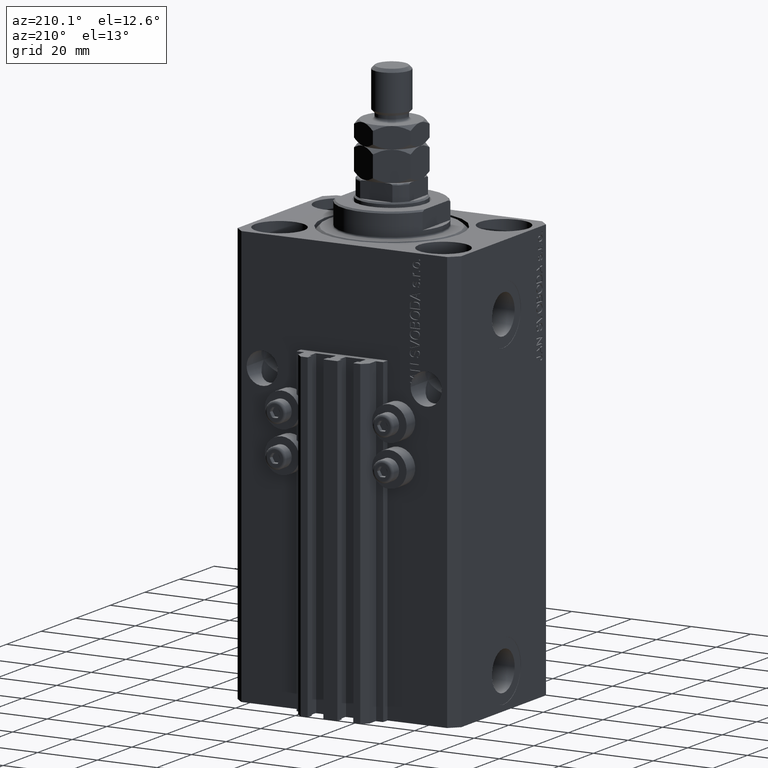
[diagram: clean part render]
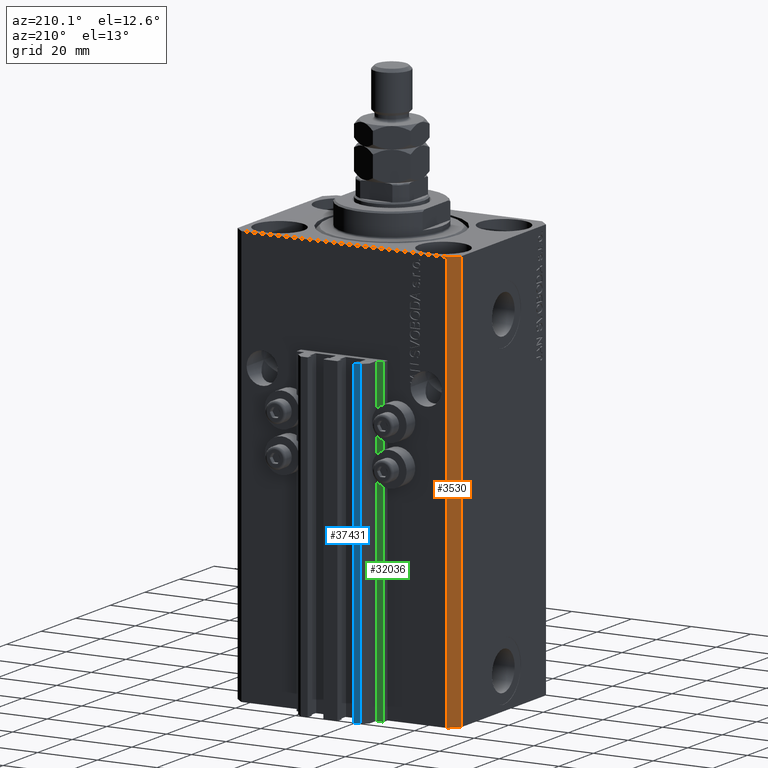
[diagram: same view with three faces highlighted in distinct colors, each labeled with its STEP entity id]
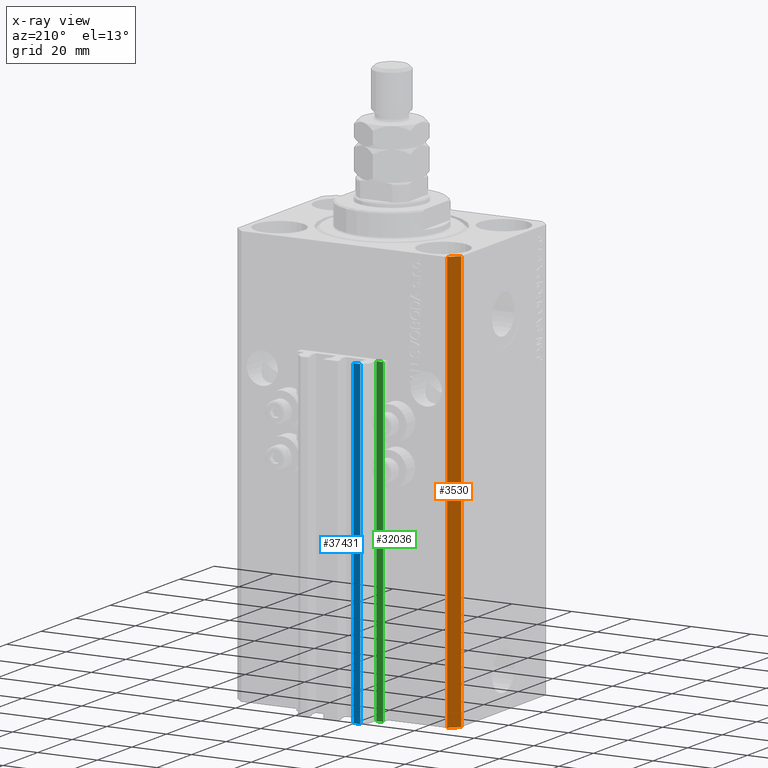
[diagram: x-ray of the same camera — body ghosted, the three highlighted faces saturated]
A machine part, auxiliary view with three faces highlighted in distinct colors.
The next image is the same camera in x-ray (body ghosted, the three faces saturated) — at least one of them is partly hidden behind the body in this view.
Their STEP definitions:

[orange] entity #3530 — the highlighted planar face has unit normal (-0.7071, 0.7071, 0).
#1055 = EDGE_LOOP ( 'NONE', ( #6891, #41247, #24299, #24936 ) ) ;
#2389 = DIRECTION ( 'NONE',  ( 0.000000000000000000, 0.000000000000000000, 1.000000000000000000 ) ) ;
#3530 = ADVANCED_FACE ( 'NONE', ( #27140 ), #15874, .T. ) ;
#4930 = AXIS2_PLACEMENT_3D ( 'NONE', #11955, #22505, #30824 ) ;
#5547 = CARTESIAN_POINT ( 'NONE',  ( -37.49999999999999289, 24.50000000000000000, -140.0000000000000000 ) ) ;
#6575 = DIRECTION ( 'NONE',  ( -0.7071067811865471286, -0.7071067811865479058, 0.000000000000000000 ) ) ;
#6823 = VECTOR ( 'NONE', #25789, 1000.000000000000000 ) ;
#6891 = ORIENTED_EDGE ( 'NONE', *, *, #17683, .F. ) ;
#8156 = EDGE_CURVE ( 'NONE', #43240, #31772, #10451, .T. ) ;
#9291 = VECTOR ( 'NONE', #30081, 1000.000000000000000 ) ;
#10451 = LINE ( 'NONE', #21473, #30103 ) ;
#11955 = CARTESIAN_POINT ( 'NONE',  ( -34.49999999999999289, 27.50000000000000000, -140.0000000000000000 ) ) ;
#13394 = EDGE_CURVE ( 'NONE', #37411, #21605, #33867, .T. ) ;
#15874 = PLANE ( 'NONE',  #4930 ) ;
#16127 = LINE ( 'NONE', #21972, #20011 ) ;
#17683 = EDGE_CURVE ( 'NONE', #31772, #21605, #38134, .T. ) ;
#20011 = VECTOR ( 'NONE', #6575, 1000.000000000000000 ) ;
#21473 = CARTESIAN_POINT ( 'NONE',  ( -34.49999999999999289, 27.50000000000000000, -140.0000000000000000 ) ) ;
#21605 = VERTEX_POINT ( 'NONE', #44080 ) ;
#21972 = CARTESIAN_POINT ( 'NONE',  ( -34.49999999999999289, 27.50000000000000000, -140.0000000000000000 ) ) ;
#22505 = DIRECTION ( 'NONE',  ( -0.7071067811865479058, 0.7071067811865471286, 0.000000000000000000 ) ) ;
#24299 = ORIENTED_EDGE ( 'NONE', *, *, #37074, .T. ) ;
#24936 = ORIENTED_EDGE ( 'NONE', *, *, #13394, .T. ) ;
#25546 = CARTESIAN_POINT ( 'NONE',  ( -37.49999999999999289, 24.50000000000000000, -140.0000000000000000 ) ) ;
#25789 = DIRECTION ( 'NONE',  ( 0.000000000000000000, 0.000000000000000000, 1.000000000000000000 ) ) ;
#27140 = FACE_OUTER_BOUND ( 'NONE', #1055, .T. ) ;
#30081 = DIRECTION ( 'NONE',  ( -0.7071067811865471286, -0.7071067811865479058, 0.000000000000000000 ) ) ;
#30103 = VECTOR ( 'NONE', #2389, 1000.000000000000000 ) ;
#30824 = DIRECTION ( 'NONE',  ( -0.7071067811865471286, -0.7071067811865479058, 0.000000000000000000 ) ) ;
#31772 = VERTEX_POINT ( 'NONE', #46268 ) ;
#33867 = LINE ( 'NONE', #25546, #6823 ) ;
#37074 = EDGE_CURVE ( 'NONE', #43240, #37411, #16127, .T. ) ;
#37411 = VERTEX_POINT ( 'NONE', #5547 ) ;
#38134 = LINE ( 'NONE', #44750, #9291 ) ;
#41247 = ORIENTED_EDGE ( 'NONE', *, *, #8156, .F. ) ;
#43240 = VERTEX_POINT ( 'NONE', #44655 ) ;
#44080 = CARTESIAN_POINT ( 'NONE',  ( -37.49999999999999289, 24.50000000000000000, 0.000000000000000000 ) ) ;
#44655 = CARTESIAN_POINT ( 'NONE',  ( -34.49999999999999289, 27.50000000000000000, -140.0000000000000000 ) ) ;
#44750 = CARTESIAN_POINT ( 'NONE',  ( -34.49999999999999289, 27.50000000000000000, 0.000000000000000000 ) ) ;
#46268 = CARTESIAN_POINT ( 'NONE',  ( -34.49999999999999289, 27.50000000000000000, 0.000000000000000000 ) ) ;

[blue] entity #37431 — the highlighted planar face has unit normal (0, 1, 0).
#5165 = CARTESIAN_POINT ( 'NONE',  ( -7.650000000000000355, 35.50000000000000000, -140.0000000000000000 ) ) ;
#5660 = VECTOR ( 'NONE', #20184, 1000.000000000000000 ) ;
#9810 = EDGE_CURVE ( 'NONE', #20337, #24644, #44211, .T. ) ;
#11720 = ORIENTED_EDGE ( 'NONE', *, *, #26052, .T. ) ;
#12346 = LINE ( 'NONE', #19458, #5660 ) ;
#13383 = VERTEX_POINT ( 'NONE', #44393 ) ;
#14341 = DIRECTION ( 'NONE',  ( -1.000000000000000000, 0.000000000000000000, 0.000000000000000000 ) ) ;
#14897 = EDGE_LOOP ( 'NONE', ( #28511, #24488, #11720, #33993 ) ) ;
#18689 = DIRECTION ( 'NONE',  ( 0.000000000000000000, 0.000000000000000000, 1.000000000000000000 ) ) ;
#18890 = VERTEX_POINT ( 'NONE', #23382 ) ;
#19458 = CARTESIAN_POINT ( 'NONE',  ( -7.650000000000000355, 35.50000000000000000, -140.0000000000000000 ) ) ;
#20095 = DIRECTION ( 'NONE',  ( 0.000000000000000000, 0.000000000000000000, 1.000000000000000000 ) ) ;
#20184 = DIRECTION ( 'NONE',  ( -1.000000000000000000, 0.000000000000000000, 0.000000000000000000 ) ) ;
#20337 = VERTEX_POINT ( 'NONE', #44187 ) ;
#20473 = PLANE ( 'NONE',  #26265 ) ;
#23382 = CARTESIAN_POINT ( 'NONE',  ( -10.00000000000000000, 35.50000000000000000, -140.0000000000000000 ) ) ;
#23900 = FACE_OUTER_BOUND ( 'NONE', #14897, .T. ) ;
#24488 = ORIENTED_EDGE ( 'NONE', *, *, #31829, .F. ) ;
#24644 = VERTEX_POINT ( 'NONE', #25700 ) ;
#25111 = CARTESIAN_POINT ( 'NONE',  ( -7.650000000000000355, 35.50000000000000000, -33.00000000000000000 ) ) ;
#25700 = CARTESIAN_POINT ( 'NONE',  ( -10.00000000000000000, 35.50000000000000000, -33.00000000000000000 ) ) ;
#26052 = EDGE_CURVE ( 'NONE', #13383, #18890, #12346, .T. ) ;
#26265 = AXIS2_PLACEMENT_3D ( 'NONE', #35419, #38839, #34447 ) ;
#28511 = ORIENTED_EDGE ( 'NONE', *, *, #9810, .F. ) ;
#30028 = VECTOR ( 'NONE', #20095, 1000.000000000000000 ) ;
#31829 = EDGE_CURVE ( 'NONE', #13383, #20337, #38699, .T. ) ;
#33993 = ORIENTED_EDGE ( 'NONE', *, *, #46146, .T. ) ;
#34447 = DIRECTION ( 'NONE',  ( 0.000000000000000000, 0.000000000000000000, 1.000000000000000000 ) ) ;
#35419 = CARTESIAN_POINT ( 'NONE',  ( -7.650000000000000355, 35.50000000000000000, -140.0000000000000000 ) ) ;
#35627 = VECTOR ( 'NONE', #14341, 1000.000000000000000 ) ;
#37062 = CARTESIAN_POINT ( 'NONE',  ( -10.00000000000000000, 35.50000000000000000, -140.0000000000000000 ) ) ;
#37431 = ADVANCED_FACE ( 'NONE', ( #23900 ), #20473, .T. ) ;
#38699 = LINE ( 'NONE', #5165, #30028 ) ;
#38839 = DIRECTION ( 'NONE',  ( 0.000000000000000000, 1.000000000000000000, -0.000000000000000000 ) ) ;
#39183 = VECTOR ( 'NONE', #18689, 1000.000000000000000 ) ;
#44187 = CARTESIAN_POINT ( 'NONE',  ( -7.650000000000000355, 35.50000000000000000, -33.00000000000000000 ) ) ;
#44211 = LINE ( 'NONE', #25111, #35627 ) ;
#44393 = CARTESIAN_POINT ( 'NONE',  ( -7.650000000000000355, 35.50000000000000000, -140.0000000000000000 ) ) ;
#46146 = EDGE_CURVE ( 'NONE', #18890, #24644, #48065, .T. ) ;
#48065 = LINE ( 'NONE', #37062, #39183 ) ;

[green] entity #32036 — the highlighted planar face has unit normal (0, 1, 0).
#586 = DIRECTION ( 'NONE',  ( 0.000000000000000000, 0.000000000000000000, 1.000000000000000000 ) ) ;
#624 = EDGE_CURVE ( 'NONE', #8777, #9999, #38845, .T. ) ;
#1618 = FACE_OUTER_BOUND ( 'NONE', #5514, .T. ) ;
#2494 = VERTEX_POINT ( 'NONE', #24767 ) ;
#5168 = EDGE_CURVE ( 'NONE', #9999, #19728, #27272, .T. ) ;
#5294 = DIRECTION ( 'NONE',  ( -1.000000000000000000, 1.508455196501571627E-15, 0.000000000000000000 ) ) ;
#5514 = EDGE_LOOP ( 'NONE', ( #11537, #35420, #22832, #36725 ) ) ;
#7217 = DIRECTION ( 'NONE',  ( -1.000000000000000000, 1.508455196501571429E-15, 0.000000000000000000 ) ) ;
#7866 = CARTESIAN_POINT ( 'NONE',  ( -14.50000000000000000, 29.99999999999999289, -33.00000000000000000 ) ) ;
#8694 = EDGE_CURVE ( 'NONE', #2494, #19728, #15505, .T. ) ;
#8777 = VERTEX_POINT ( 'NONE', #47996 ) ;
#9634 = DIRECTION ( 'NONE',  ( -1.000000000000000000, 1.508455196501571429E-15, 0.000000000000000000 ) ) ;
#9999 = VERTEX_POINT ( 'NONE', #31942 ) ;
#11537 = ORIENTED_EDGE ( 'NONE', *, *, #5168, .F. ) ;
#12748 = VECTOR ( 'NONE', #46176, 1000.000000000000000 ) ;
#15505 = LINE ( 'NONE', #41470, #37915 ) ;
#19728 = VERTEX_POINT ( 'NONE', #7866 ) ;
#22832 = ORIENTED_EDGE ( 'NONE', *, *, #39330, .T. ) ;
#24767 = CARTESIAN_POINT ( 'NONE',  ( -14.50000000000000000, 29.99999999999999289, -140.0000000000000000 ) ) ;
#25814 = LINE ( 'NONE', #36369, #38846 ) ;
#26177 = DIRECTION ( 'NONE',  ( 1.508455196501571627E-15, 1.000000000000000000, -0.000000000000000000 ) ) ;
#27272 = LINE ( 'NONE', #42931, #31540 ) ;
#31540 = VECTOR ( 'NONE', #9634, 1000.000000000000000 ) ;
#31942 = CARTESIAN_POINT ( 'NONE',  ( -12.20000000000000107, 29.99999999999998934, -33.00000000000000000 ) ) ;
#32036 = ADVANCED_FACE ( 'NONE', ( #1618 ), #38332, .T. ) ;
#33529 = CARTESIAN_POINT ( 'NONE',  ( -12.20000000000000107, 29.99999999999998934, -140.0000000000000000 ) ) ;
#34946 = CARTESIAN_POINT ( 'NONE',  ( -12.20000000000000107, 29.99999999999998934, -140.0000000000000000 ) ) ;
#35420 = ORIENTED_EDGE ( 'NONE', *, *, #624, .F. ) ;
#36369 = CARTESIAN_POINT ( 'NONE',  ( -12.20000000000000107, 29.99999999999998934, -140.0000000000000000 ) ) ;
#36725 = ORIENTED_EDGE ( 'NONE', *, *, #8694, .T. ) ;
#37806 = AXIS2_PLACEMENT_3D ( 'NONE', #33529, #26177, #5294 ) ;
#37915 = VECTOR ( 'NONE', #586, 1000.000000000000000 ) ;
#38332 = PLANE ( 'NONE',  #37806 ) ;
#38845 = LINE ( 'NONE', #34946, #12748 ) ;
#38846 = VECTOR ( 'NONE', #7217, 1000.000000000000000 ) ;
#39330 = EDGE_CURVE ( 'NONE', #8777, #2494, #25814, .T. ) ;
#41470 = CARTESIAN_POINT ( 'NONE',  ( -14.50000000000000000, 29.99999999999999289, -140.0000000000000000 ) ) ;
#42931 = CARTESIAN_POINT ( 'NONE',  ( -12.20000000000000107, 29.99999999999998934, -33.00000000000000000 ) ) ;
#46176 = DIRECTION ( 'NONE',  ( 0.000000000000000000, 0.000000000000000000, 1.000000000000000000 ) ) ;
#47996 = CARTESIAN_POINT ( 'NONE',  ( -12.20000000000000107, 29.99999999999998934, -140.0000000000000000 ) ) ;